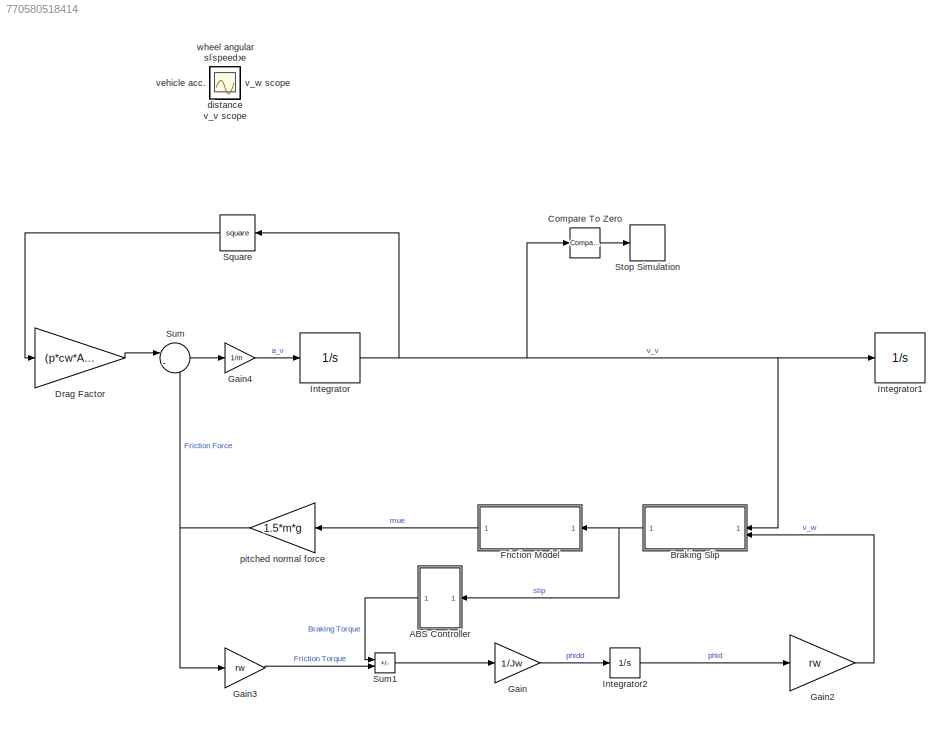
MODEL slx_770580518414
KIND model
CONFIG AbsTol = auto
CONFIG EnableMultiTasking = off
CONFIG FixedStep = auto
CONFIG MaxStep = auto
CONFIG MinStep = auto
CONFIG RelTol = 1e-3
CONFIG SampleTimeConstraint = Unconstrained
CONFIG SolverName = VariableStepAuto
CONFIG StartTime = 0.0
CONFIG StopTime = 3
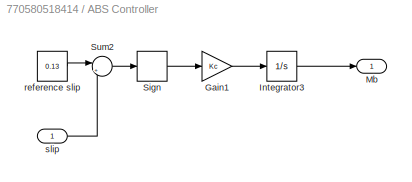
BLOCK [SubSystem] ABS Controller
BLOCK [Gain] ABS Controller/Gain1
  Gain = Kc
BLOCK [Integrator] ABS Controller/Integrator3
  LimitOutput = on
  LowerSaturationLimit = 0
  ZeroCross = off
BLOCK [Outport] ABS Controller/Mb
BLOCK [Signum] ABS Controller/Sign
BLOCK [Sum] ABS Controller/Sum2
  Inputs = |+-
BLOCK [Constant] ABS Controller/reference slip
  Value = 0.13
BLOCK [Inport] ABS Controller/slip
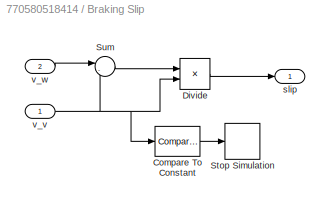
BLOCK [SubSystem] Braking Slip
  NameLocation = top
BLOCK [Reference] Braking Slip/Compare To Constant  REF=simulink/Logic and Bit
Operations/Compare
To Constant
  SourceBlock = simulink/Logic and Bit\nOperations/Compare\nTo Constant
  SourceType = Compare To Constant
BLOCK [Product] Braking Slip/Divide
  Inputs = */
BLOCK [Stop] Braking Slip/Stop Simulation
BLOCK [Sum] Braking Slip/Sum
  Inputs = |-+
BLOCK [Outport] Braking Slip/slip
BLOCK [Inport] Braking Slip/v_v
BLOCK [Inport] Braking Slip/v_w
  Port = 2
BLOCK [Reference] Compare To Zero  REF=simulink/Logic and Bit
Operations/Compare
To Zero
  SourceBlock = simulink/Logic and Bit\nOperations/Compare\nTo Zero
  SourceType = Compare To Zero
BLOCK [Gain] Drag Factor
  Gain = (p*cw*A)/(2)
  NameLocation = top
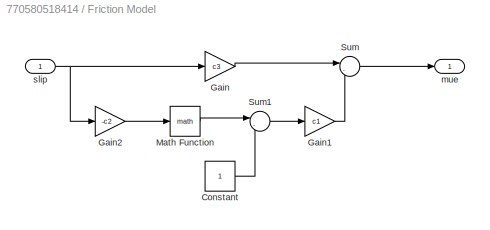
BLOCK [SubSystem] Friction Model
  NameLocation = top
BLOCK [Constant] Friction Model/Constant
BLOCK [Gain] Friction Model/Gain
  Gain = c3
BLOCK [Gain] Friction Model/Gain1
  Gain = c1
BLOCK [Gain] Friction Model/Gain2
  Gain = -c2
BLOCK [Math] Friction Model/Math Function
BLOCK [Sum] Friction Model/Sum
  Inputs = |-+
BLOCK [Sum] Friction Model/Sum1
  Inputs = |-+
BLOCK [Outport] Friction Model/mue
BLOCK [Inport] Friction Model/slip
BLOCK [Gain] Gain
  Gain = 1/Jw
BLOCK [Gain] Gain2
  Gain = rw
BLOCK [Gain] Gain3
  Gain = rw
  NameLocation = top
BLOCK [Gain] Gain4
  Gain = 1/m
BLOCK [Integrator] Integrator
  InitialCondition = v0
  LimitOutput = on
  LowerSaturationLimit = 0
BLOCK [Integrator] Integrator1
  LimitOutput = on
  LowerSaturationLimit = 0
BLOCK [Integrator] Integrator2
  InitialCondition = v0/rw
  LimitOutput = on
  LowerSaturationLimit = 0
BLOCK [Math] Square
  NameLocation = top
  Operator = square
BLOCK [Stop] Stop Simulation
BLOCK [Sum] Sum
  Inputs = |--
BLOCK [Sum] Sum1
  IconShape = rectangular
  Inputs = -+
BLOCK [Scope] distance
  Floating = off
  IOType = viewer
  NumInputPorts = 1
  ScopeSpecificationString = Simulink.scopes.TimeScopeBlockCfg('CurrentConfiguration', extmgr.ConfigurationSet(extmgr.Configuration('Core','General UI',true),extmgr.Configuration('Core','Source UI',true),extmgr.Configuration('Sources','WiredSimulink',true,'DataLoggingVariableName','ScopeData3'),extmgr.Configuration('Visuals','Time Domain',true,'SerializedDisplays',{struct('MinYLimReal','-4.50313','MaxYLimReal','40.52816','YLa...<+1390ch>
BLOCK [Gain] pitched normal force
  Gain = 1.5*m*g
  NameLocation = top
BLOCK [Scope] slip scope
  Floating = off
  IOType = viewer
  NumInputPorts = 1
  ScopeSpecificationString = Simulink.scopes.TimeScopeBlockCfg('CurrentConfiguration', extmgr.ConfigurationSet(extmgr.Configuration('Core','General UI',true),extmgr.Configuration('Core','Source UI',true),extmgr.Configuration('Sources','WiredSimulink',true,'DataLoggingVariableName','ScopeData4'),extmgr.Configuration('Visuals','Time Domain',true,'SerializedDisplays',{struct('MinYLimReal','-3.64907','MaxYLimReal','31.26965','YLa...<+1459ch>
BLOCK [Scope] v_v scope
  Floating = off
  IOType = viewer
  NumInputPorts = 1
  ScopeSpecificationString = Simulink.scopes.TimeScopeBlockCfg('CurrentConfiguration', extmgr.ConfigurationSet(extmgr.Configuration('Core','General UI',true),extmgr.Configuration('Core','Source UI',true),extmgr.Configuration('Sources','WiredSimulink',true,'DataLoggingVariableName','ScopeData1'),extmgr.Configuration('Visuals','Time Domain',true,'SerializedDisplays',{struct('MinYLimReal','-3.47222','MaxYLimReal','31.25','YLabel...<+1381ch>
BLOCK [Scope] v_w scope
  Floating = off
  IOType = viewer
  NumInputPorts = 1
  ScopeSpecificationString = Simulink.scopes.TimeScopeBlockCfg('CurrentConfiguration', extmgr.ConfigurationSet(extmgr.Configuration('Core','General UI',true),extmgr.Configuration('Core','Source UI',true),extmgr.Configuration('Sources','WiredSimulink',true,'DataLoggingVariableName','ScopeData2'),extmgr.Configuration('Visuals','Time Domain',true,'SerializedDisplays',{struct('MinYLimReal','17.15126','MaxYLimReal','17.35282','YLa...<+1416ch>
BLOCK [Scope] vehicle acc.
  Floating = off
  IOType = viewer
  NumInputPorts = 1
  ScopeSpecificationString = Simulink.scopes.TimeScopeBlockCfg('CurrentConfiguration', extmgr.ConfigurationSet(extmgr.Configuration('Core','General UI',true),extmgr.Configuration('Core','Source UI',true),extmgr.Configuration('Sources','WiredSimulink',true,'DataLoggingVariableName','ScopeData3'),extmgr.Configuration('Visuals','Time Domain',true,'SerializedDisplays',{struct('MinYLimReal','-500946.9694','MaxYLimReal','4328941.21...<+1438ch>
BLOCK [Scope] wheel angular speed
  Floating = off
  IOType = viewer
  NumInputPorts = 1
  ScopeSpecificationString = Simulink.scopes.TimeScopeBlockCfg('CurrentConfiguration', extmgr.ConfigurationSet(extmgr.Configuration('Core','General UI',true),extmgr.Configuration('Core','Source UI',true),extmgr.Configuration('Sources','WiredSimulink',true,'DataLoggingVariableName','ScopeData2'),extmgr.Configuration('Visuals','Time Domain',true,'SerializedDisplays',{struct('MinYLimReal','-11.57407','MaxYLimReal','104.16667','Y...<+1472ch>
LINE ABS Controller/Gain1:1 -> ABS Controller/Integrator3:1
LINE ABS Controller/Integrator3:1 -> ABS Controller/Mb:1
LINE ABS Controller/Sign:1 -> ABS Controller/Gain1:1
LINE ABS Controller/Sum2:1 -> ABS Controller/Sign:1
LINE ABS Controller/reference slip:1 -> ABS Controller/Sum2:1
LINE ABS Controller/slip:1 -> ABS Controller/Sum2:2
LINE ABS Controller:1 -> Sum1:1
LINE Braking Slip/Compare To Constant:1 -> Braking Slip/Stop Simulation:1
LINE Braking Slip/Divide:1 -> Braking Slip/slip:1
LINE Braking Slip/Sum:1 -> Braking Slip/Divide:1
NET Braking Slip/v_v:1 -> Braking Slip/Compare To Constant:1, Braking Slip/Divide:2, Braking Slip/Sum:2
LINE Braking Slip/v_w:1 -> Braking Slip/Sum:1
NET Braking Slip:1 -> ABS Controller:1, Friction Model:1
LINE Compare To Zero:1 -> Stop Simulation:1
LINE Drag Factor:1 -> Sum:1
LINE Friction Model/Constant:1 -> Friction Model/Sum1:2
LINE Friction Model/Gain1:1 -> Friction Model/Sum:2
LINE Friction Model/Gain2:1 -> Friction Model/Math Function:1
LINE Friction Model/Gain:1 -> Friction Model/Sum:1
LINE Friction Model/Math Function:1 -> Friction Model/Sum1:1
LINE Friction Model/Sum1:1 -> Friction Model/Gain1:1
LINE Friction Model/Sum:1 -> Friction Model/mue:1
NET Friction Model/slip:1 -> Friction Model/Gain2:1, Friction Model/Gain:1
LINE Friction Model:1 -> pitched normal force:1
LINE Gain2:1 -> Braking Slip:2
LINE Gain3:1 -> Sum1:2
LINE Gain4:1 -> Integrator:1
LINE Gain:1 -> Integrator2:1
LINE Integrator2:1 -> Gain2:1
NET Integrator:1 -> Braking Slip:1, Compare To Zero:1, Integrator1:1, Square:1
LINE Square:1 -> Drag Factor:1
LINE Sum1:1 -> Gain:1
LINE Sum:1 -> Gain4:1
NET pitched normal force:1 -> Gain3:1, Sum:2
note: NET lines group one-source signal fan-out (src -> all destinations, sorted); 1:1 wires keep LINE
